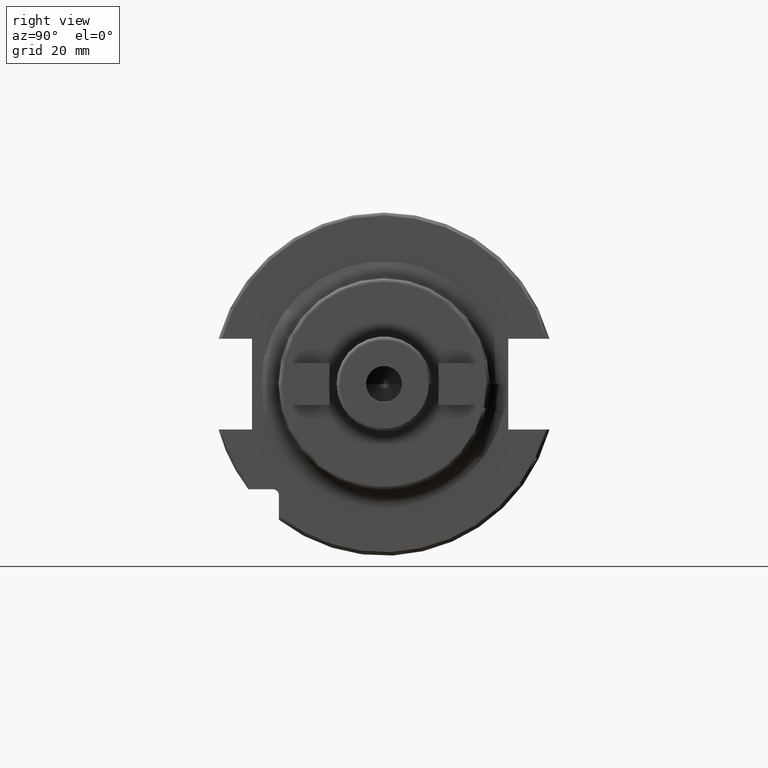
[diagram: clean part render]
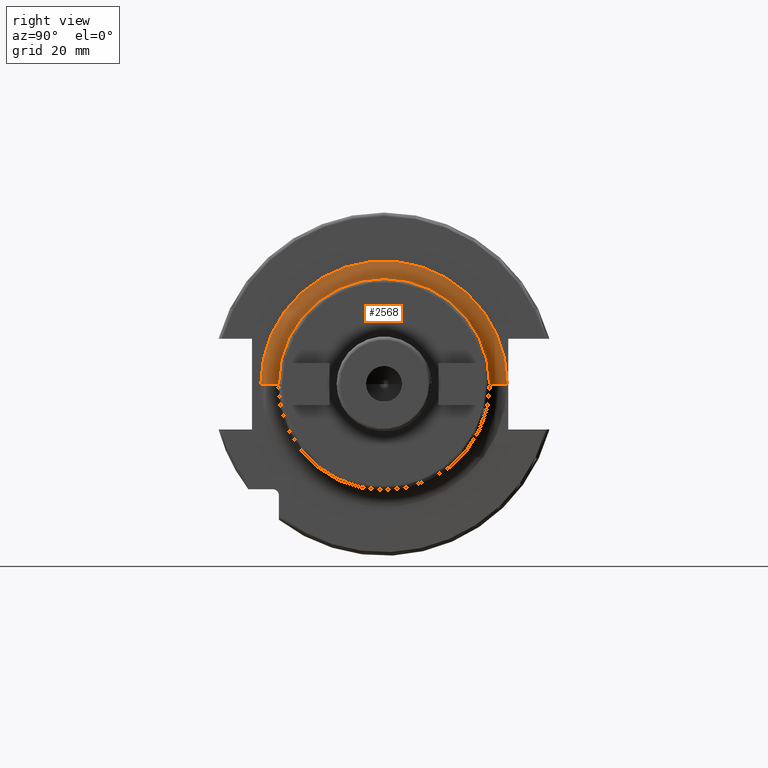
[diagram: same view with one face highlighted and labeled with its STEP entity id]
A machine part, right view. The second image highlights one B-rep face of the part: STEP entity #2568.
In plain terms, the highlighted toroidal blend (fillet) surface has major radius 35 mm and minor (blend) radius 5 mm.
Its self-contained STEP definition (entity closure, byte-faithful):
#163=CARTESIAN_POINT('',(1.905E1,0.E0,0.E0));
#164=DIRECTION('',(1.E0,0.E0,0.E0));
#165=DIRECTION('',(0.E0,1.E0,0.E0));
#166=AXIS2_PLACEMENT_3D('',#163,#164,#165);
#896=CARTESIAN_POINT('',(2.405E1,-3.5E1,1.471323063384E-13));
#897=DIRECTION('',(0.E0,0.E0,-1.E0));
#898=DIRECTION('',(-1.E0,0.E0,0.E0));
#899=AXIS2_PLACEMENT_3D('',#896,#897,#898);
#901=CARTESIAN_POINT('',(2.405E1,3.5E1,-1.514899317101E-13));
#902=DIRECTION('',(0.E0,0.E0,1.E0));
#903=DIRECTION('',(-1.E0,0.E0,0.E0));
#904=AXIS2_PLACEMENT_3D('',#901,#902,#903);
#911=CARTESIAN_POINT('',(2.405E1,0.E0,0.E0));
#912=DIRECTION('',(1.E0,0.E0,0.E0));
#913=DIRECTION('',(0.E0,1.E0,0.E0));
#914=AXIS2_PLACEMENT_3D('',#911,#912,#913);
#1570=CARTESIAN_POINT('',(1.905E1,-3.5E1,0.E0));
#1571=CARTESIAN_POINT('',(1.905E1,3.5E1,0.E0));
#1572=VERTEX_POINT('',#1570);
#1573=VERTEX_POINT('',#1571);
#1574=CARTESIAN_POINT('',(2.405E1,-3.E1,0.E0));
#1575=CARTESIAN_POINT('',(2.405E1,3.E1,0.E0));
#1576=VERTEX_POINT('',#1574);
#1577=VERTEX_POINT('',#1575);
#2556=CARTESIAN_POINT('',(2.405E1,0.E0,0.E0));
#2557=DIRECTION('',(1.E0,0.E0,0.E0));
#2558=DIRECTION('',(0.E0,9.999868641411E-1,-5.125577556927E-3));
#2559=AXIS2_PLACEMENT_3D('',#2556,#2557,#2558);
#2560=TOROIDAL_SURFACE('',#2559,3.5E1,5.E0);
#2561=ORIENTED_EDGE('',*,*,#1836,.F.);
#2562=ORIENTED_EDGE('',*,*,#2551,.T.);
#2564=ORIENTED_EDGE('',*,*,#2563,.T.);
#2565=ORIENTED_EDGE('',*,*,#2547,.F.);
#2566=EDGE_LOOP('',(#2561,#2562,#2564,#2565));
#2567=FACE_OUTER_BOUND('',#2566,.F.);
#2568=ADVANCED_FACE('',(#2567),#2560,.F.);
#167=CIRCLE('',#166,3.5E1);
#900=CIRCLE('',#899,5.E0);
#905=CIRCLE('',#904,5.E0);
#915=CIRCLE('',#914,3.E1);
#1836=EDGE_CURVE('',#1573,#1572,#167,.T.);
#2547=EDGE_CURVE('',#1572,#1576,#900,.T.);
#2551=EDGE_CURVE('',#1573,#1577,#905,.T.);
#2563=EDGE_CURVE('',#1577,#1576,#915,.T.);